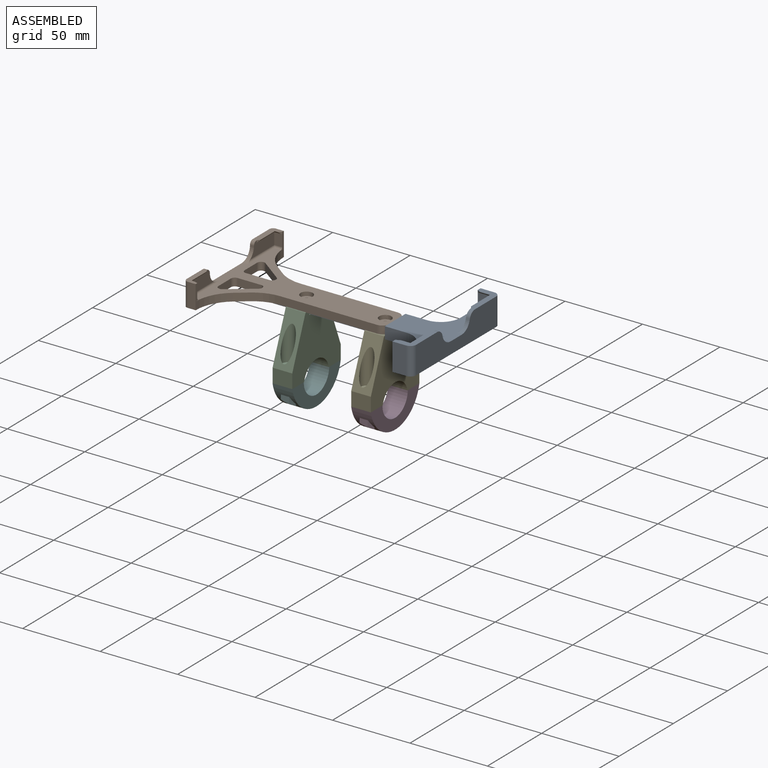
[diagram: assembled view]
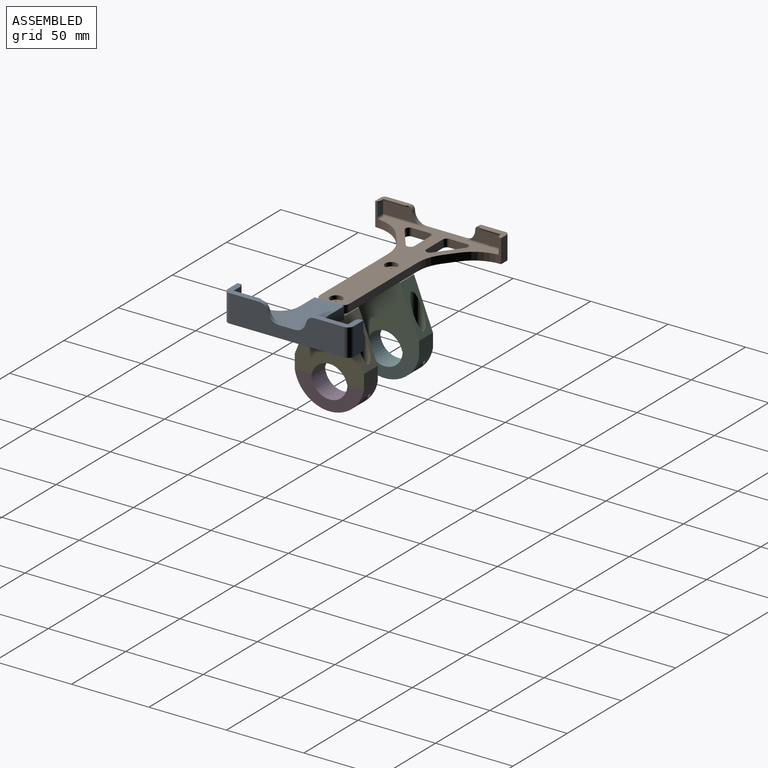
[diagram: assembled view, second angle]
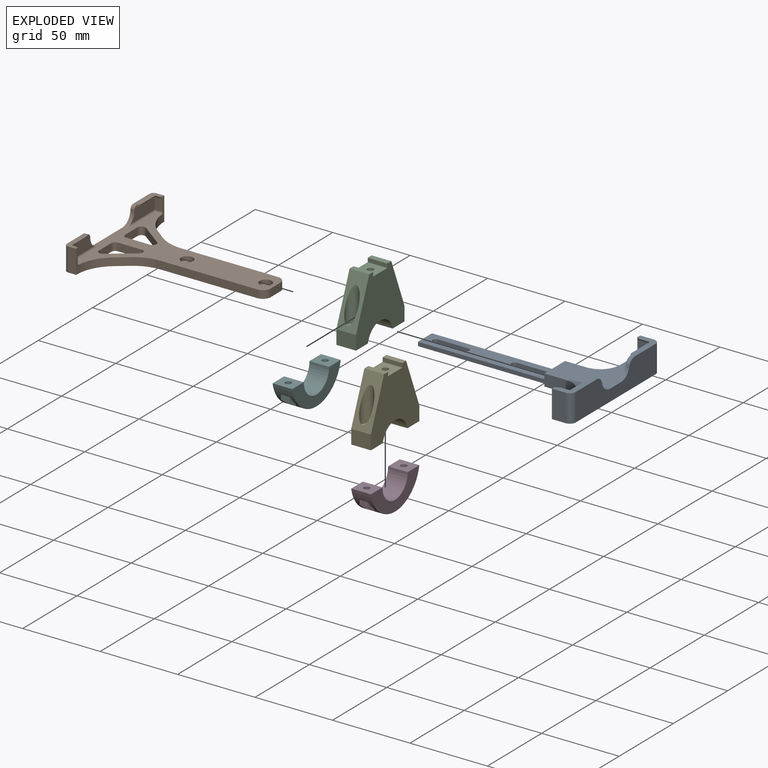
[diagram: exploded view]
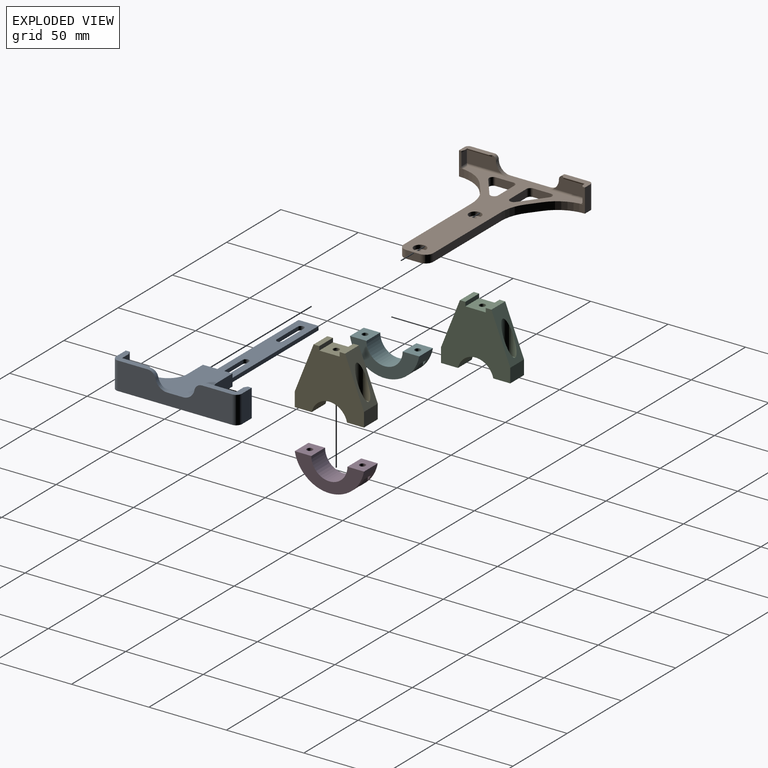
[diagram: exploded view, second angle]
ASSEMBLY  parts=6 mates=5
PART A: 69 faces, bbox 123.2x81.3x17.8 mm
  f0: plane 2.54x0.43mm, normal (0,-1,0), area 1.1mm2, adj f5,f61,f62,f65
  f1: plane 83.83x12.95mm, normal (0,0,1), area 902mm2, adj f4,f11,f12,f13,f14,f15,f16,f18
  f2: plane 13.97x7.62mm, normal (0,1,0), area 106.5mm2, adj f5,f10,f26,f54
  f3: plane 13.97x7.62mm, normal (0,-1,0), area 106.5mm2, adj f5,f10,f27,f54
  f4: cylinder r=3.81mm len=2.54mm, axis (0,0,-1), area 1.9mm2, adj f1,f5,f18,f56
  f5: plane 123.2x81.28mm, normal (0,0,-1), area 2526mm2, adj f0,f2,f3,f4,f11,f12,f13,f14
  f6: plane 10.16x7.62mm, normal (0,-1,0), area 77.4mm2, adj f7,f17,f37,f51
  f7: plane 28.81x8.89mm, normal (-1,0,0), area 201.5mm2, adj f6,f31,f33,f36,f50,f51
  f8: plane 28.81x8.89mm, normal (-1,0,0), area 201.5mm2, adj f9,f30,f32,f34,f41,f44
  f9: plane 10.16x7.62mm, normal (0,1,0), area 77.4mm2, adj f8,f20,f35,f44
  f10: plane 73.66x39.37mm, normal (0,0,1), area 1270.8mm2, adj f2,f3,f17,f20,f22,f26,f27,f30
  f11: plane 19.43x2.54mm, normal (0,-1,0), area 49.4mm2, adj f1,f5,f12,f25
  f12: cylinder r=2.03mm len=4.06mm, axis (0,0,-1), area 16.2mm2, adj f1,f5,f11,f13
  f13: plane 19.43x2.54mm, normal (0,1,0), area 49.4mm2, adj f1,f5,f12,f25
  f14: cylinder r=2.03mm len=4.06mm, axis (0,0,-1), area 16.2mm2, adj f1,f5,f15,f23
  f15: plane 19.43x2.54mm, normal (0,-1,0), area 49.4mm2, adj f1,f5,f14,f16
  f16: cylinder r=2.03mm len=4.06mm, axis (0,0,-1), area 16.2mm2, adj f1,f5,f15,f23
  f17: plane 18.42x17.78mm, normal (-1,0,0), area 166.5mm2, adj f5,f6,f10,f24,f26,f28,f37,f47
  f18: plane 11.43x2.54mm, normal (-1,0,0), area 29mm2, adj f1,f4,f5,f19
  f19: cylinder r=3.81mm len=2.54mm, axis (0,0,-1), area 1.9mm2, adj f1,f5,f18,f55
  f20: plane 18.42x17.78mm, normal (-1,0,0), area 144mm2, adj f5,f9,f10,f21,f27,f29,f35,f40
  f21: plane 17.78x8.89mm, normal (0,-1,0), area 158.1mm2, adj f5,f20,f29,f39
  f22: plane 73.66x17.78mm, normal (1,0,0), area 1067.5mm2, adj f5,f10,f28,f29,f30,f31,f32,f33
  f23: plane 19.43x2.54mm, normal (0,1,0), area 49.4mm2, adj f1,f5,f14,f16
  f24: plane 17.78x8.89mm, normal (0,1,0), area 158.1mm2, adj f5,f17,f28,f38
  f25: cylinder r=2.03mm len=4.06mm, axis (0,0,-1), area 16.2mm2, adj f1,f5,f11,f13
  f26: cylinder r=12.7mm len=12.7mm, axis (0,0,-1), area 152mm2, adj f2,f5,f10,f17
  f27: cylinder r=12.7mm len=12.7mm, axis (0,0,-1), area 152mm2, adj f3,f5,f10,f20
  f28: plane 23.12x12.7mm, normal (0,0,1), area 116.6mm2, adj f17,f22,f24,f33,f38,f47,f48,f49
  f29: plane 23.12x12.7mm, normal (0,0,1), area 115.6mm2, adj f20,f21,f22,f32,f39,f40,f41,f42
  f30: cylinder r=7.62mm len=7.47mm, axis (-1,0,0), area 28.7mm2, adj f8,f10,f22,f32,f34
  f31: cylinder r=7.62mm len=7.47mm, axis (1,0,0), area 28.7mm2, adj f7,f10,f22,f33,f36
  f32: cylinder r=5.08mm len=4.98mm, axis (-1,0,0), area 17.7mm2, adj f8,f22,f29,f30
  f33: cylinder r=5.08mm len=4.98mm, axis (1,0,0), area 17.7mm2, adj f7,f22,f28,f31
  f34: cylinder r=1.27mm len=33.02mm, axis (0,-1,0), area 60.4mm2, adj f8,f10,f30,f35
  f35: cylinder r=1.27mm len=10.16mm, axis (-1,0,0), area 19.3mm2, adj f9,f10,f20,f34
  f36: cylinder r=1.27mm len=33.02mm, axis (0,-1,0), area 60.4mm2, adj f7,f10,f31,f37
  f37: cylinder r=1.27mm len=10.16mm, axis (1,0,0), area 19.3mm2, adj f6,f10,f17,f36
  f38: cylinder r=3.81mm len=17.78mm, axis (0,0,1), area 106.4mm2, adj f5,f22,f24,f28
  f39: cylinder r=3.81mm len=17.78mm, axis (0,0,-1), area 106.4mm2, adj f5,f21,f22,f29
  f40: plane 3x1.27mm, normal (-0.39,0.92,0), area 2.8mm2, adj f20,f29,f43,f44,f46
  f41: plane 2.05x1.27mm, normal (-0.85,0.53,0), area 2.1mm2, adj f8,f29,f42,f44,f45
  f42: plane 17.25x0.25mm, normal (-1,0,0), area 4.4mm2, adj f29,f41,f43,f45
  f43: plane 5.89x0.25mm, normal (0,1,0), area 1.5mm2, adj f29,f40,f42,f46
  f44: plane 20.58x10.16mm, normal (0,0,-1), area 7.6mm2, adj f8,f9,f40,f41,f45,f46
  f45: plane 19.91x1.02mm, normal (-0.71,0,-0.71), area 26.7mm2, adj f41,f42,f44,f46
  f46: plane 9.31x1.02mm, normal (0,0.71,-0.71), area 10.9mm2, adj f40,f43,f44,f45
  f47: plane 1.91x1.27mm, normal (-0.55,-0.83,0), area 2mm2, adj f17,f28,f48,f51,f53
  f48: plane 6.98x0.25mm, normal (0,-1,0), area 1.8mm2, adj f28,f47,f49,f53
  f49: plane 17.66x0.25mm, normal (-1,0,0), area 4.5mm2, adj f28,f48,f50,f52
  f50: plane 1.65x1.27mm, normal (-0.79,-0.61,0), area 1.8mm2, adj f7,f28,f49,f51,f52
  f51: plane 20.58x10.16mm, normal (0,0,-1), area 7.7mm2, adj f6,f7,f47,f50,f52,f53
  f52: plane 19.99x1.02mm, normal (-0.71,0,-0.71), area 27mm2, adj f49,f50,f51,f53
  f53: plane 9.52x1.02mm, normal (0,-0.71,-0.71), area 11.9mm2, adj f47,f48,f51,f52
  f54: plane 19.05x7.62mm, normal (-1,0,0), area 112.3mm2, adj f1,f2,f3,f5,f10,f55,f56
  f55: plane 83.75x2.54mm, normal (0,-1,0), area 212.7mm2, adj f1,f5,f19,f54
  f56: plane 83.75x2.54mm, normal (0,1,0), area 212.7mm2, adj f1,f4,f5,f54
  f57: plane 3.04x2.54mm, normal (-0.6,0.8,0), area 9.6mm2, adj f5,f61,f64,f66
  f58: plane 2.54x2.02mm, normal (-1,0,0), area 5.1mm2, adj f5,f61,f64,f67
  f59: plane 2.54x0.64mm, normal (0,-1,0), area 1.6mm2, adj f5,f61,f67,f68
  f60: plane 2.54x0.38mm, normal (1,0,0), area 1mm2, adj f5,f61,f63,f68
  f61: plane 8.87x5.07mm, normal (0,0,1), area 20.8mm2, adj f0,f20,f57,f58,f59,f60,f62,f63
  f62: cylinder r=1.02mm len=2.54mm, axis (0,0,-1), area 3.7mm2, adj f0,f5,f61,f63
  f63: cylinder r=1.02mm len=2.54mm, axis (0,0,-1), area 2.6mm2, adj f5,f60,f61,f62
  f64: cylinder r=2.54mm len=2.54mm, axis (0,0,-1), area 6mm2, adj f5,f57,f58,f61
  f65: cylinder r=2.54mm len=2.54mm, axis (0,0,-1), area 10.1mm2, adj f0,f5,f20,f61
  f66: cylinder r=2.54mm len=2.54mm, axis (0,0,1), area 6mm2, adj f5,f20,f57,f61
  f67: cylinder r=0.51mm len=2.54mm, axis (0,0,1), area 2mm2, adj f5,f58,f59,f61
  f68: cylinder r=0.51mm len=2.54mm, axis (0,0,1), area 2mm2, adj f5,f59,f60,f61
PART B: 68 faces, bbox 108x81.3x15.2 mm
  f0: plane 7.62x5.08mm, normal (0,-1,0), area 38.7mm2, adj f7,f41,f49,f63
  f1: plane 7.87x5.08mm, normal (0,1,0), area 40mm2, adj f11,f43,f51,f58
  f2: plane 107.95x81.02mm, normal (0,0,1), area 2246.5mm2, adj f5,f6,f7,f9,f11,f12,f13,f14
  f3: plane 107.95x81.28mm, normal (0,0,-1), area 2552.5mm2, adj f4,f5,f6,f7,f8,f9,f10,f11
  f4: cylinder r=1.91mm len=3.81mm, axis (0,0,1), area 30.4mm2, adj f3,f19
  f5: plane 62.54x5.08mm, normal (0,1,0), area 317.7mm2, adj f2,f3,f29,f67
  f6: plane 7.32x5.58mm, normal (0.61,0.79,0), area 46.7mm2, adj f2,f3,f29,f30
  f7: plane 15.24x2.79mm, normal (1,0,0), area 16.5mm2, adj f0,f2,f3,f8,f30,f42,f49,f62
  f8: plane 15.24x5.08mm, normal (0,1,0), area 77.4mm2, adj f3,f7,f33,f42
  f9: plane 76.2x15.24mm, normal (-1,0,0), area 770.5mm2, adj f2,f3,f33,f34,f42,f44,f45,f46
  f10: plane 15.24x5.08mm, normal (0,-1,0), area 77.4mm2, adj f3,f11,f34,f44
  f11: plane 15.24x2.79mm, normal (1,0,0), area 16.5mm2, adj f1,f2,f3,f10,f31,f44,f51,f53
  f12: plane 7.32x5.58mm, normal (0.61,-0.79,0), area 46.7mm2, adj f2,f3,f31,f32
  f13: plane 62.54x5.08mm, normal (0,-1,0), area 317.7mm2, adj f2,f3,f32,f66
  f14: plane 8.89x5.08mm, normal (1,0,0), area 45.2mm2, adj f2,f3,f66,f67
  f15: extruded ~3.81x2.54mm, area 15.2mm2, adj f3,f16,f25
  f16: cylinder r=1.91mm len=3.81mm, axis (0,0,1), area 15.2mm2, adj f3,f15,f25
  f17: cylinder r=3.94mm len=7.87mm, axis (0,0,1), area 31.4mm2, adj f2,f18,f19
  f18: extruded ~7.87x3.94mm, area 31.4mm2, adj f2,f17,f19
  f19: plane 9.06x7.87mm, normal (0,0,1), area 37.3mm2, adj f4,f17,f18
  f20: plane 15.24x5.08mm, normal (0,1,0), area 77.4mm2, adj f2,f3,f38,f40
  f21: plane 15.24x11.43mm, normal (-0.6,-0.8,0), area 96.8mm2, adj f2,f3,f39,f40
  f22: plane 11.43x5.08mm, normal (1,0,0), area 58.1mm2, adj f2,f3,f38,f39
  f23: cylinder r=3.94mm len=7.87mm, axis (0,0,1), area 31.4mm2, adj f2,f24,f25
  f24: extruded ~7.87x3.94mm, area 31.4mm2, adj f2,f23,f25
  f25: plane 9.06x7.87mm, normal (0,0,1), area 37.3mm2, adj f15,f16,f23,f24
  f26: plane 15.24x11.43mm, normal (-0.6,0.8,0), area 96.8mm2, adj f2,f3,f35,f37
  f27: plane 15.24x5.08mm, normal (0,-1,0), area 77.4mm2, adj f2,f3,f35,f36
  f28: plane 11.43x5.08mm, normal (1,0,0), area 58.1mm2, adj f2,f3,f36,f37
  f29: cylinder r=25.4mm len=15.41mm, axis (0,0,-1), area 84.1mm2, adj f2,f3,f5,f6
  f30: cylinder r=25.4mm len=20.19mm, axis (0,0,-1), area 118.6mm2, adj f2,f3,f6,f7
  f31: cylinder r=25.4mm len=20.19mm, axis (0,0,-1), area 118.6mm2, adj f2,f3,f11,f12
  f32: cylinder r=25.4mm len=15.41mm, axis (0,0,-1), area 84.1mm2, adj f2,f3,f12,f13
  f33: cylinder r=2.54mm len=15.24mm, axis (0,0,-1), area 60.8mm2, adj f3,f8,f9,f42
  f34: cylinder r=2.54mm len=15.24mm, axis (0,0,1), area 60.8mm2, adj f3,f9,f10,f44
  f35: cylinder r=2.54mm len=5.08mm, axis (0,0,-1), area 32.2mm2, adj f2,f3,f26,f27
  f36: cylinder r=2.54mm len=5.08mm, axis (0,0,-1), area 20.3mm2, adj f2,f3,f27,f28
  f37: cylinder r=2.54mm len=5.08mm, axis (0,0,-1), area 28.6mm2, adj f2,f3,f26,f28
  f38: cylinder r=2.54mm len=5.08mm, axis (0,0,-1), area 20.3mm2, adj f2,f3,f20,f22
  f39: cylinder r=2.54mm len=5.08mm, axis (0,0,-1), area 28.6mm2, adj f2,f3,f21,f22
  f40: cylinder r=2.54mm len=5.08mm, axis (0,0,-1), area 32.2mm2, adj f2,f3,f20,f21
  f41: plane 22.2x8.89mm, normal (1,0,0), area 151.5mm2, adj f0,f46,f48,f50,f59,f63
  f42: plane 17.78x7.62mm, normal (0,0,1), area 74.9mm2, adj f7,f8,f9,f33,f48,f59,f60,f61
  f43: plane 22.2x8.89mm, normal (1,0,0), area 155.6mm2, adj f1,f45,f47,f52,f56,f57
  f44: plane 17.78x7.62mm, normal (0,0,1), area 65.9mm2, adj f9,f10,f11,f34,f47,f53,f54,f55
  f45: cylinder r=7.62mm len=7.62mm, axis (-1,0,0), area 32.6mm2, adj f2,f9,f43,f47,f52
  f46: cylinder r=7.62mm len=7.62mm, axis (1,0,0), area 32.6mm2, adj f2,f9,f41,f48,f50
  f47: cylinder r=2.54mm len=2.54mm, axis (1,0,0), area 10.1mm2, adj f9,f43,f44,f45
  f48: cylinder r=2.54mm len=2.54mm, axis (-1,0,0), area 10.1mm2, adj f9,f41,f42,f46
  f49: cylinder r=1.27mm len=5.08mm, axis (1,0,0), area 9.2mm2, adj f0,f2,f7,f50
  f50: cylinder r=1.27mm len=26.42mm, axis (0,1,0), area 47.3mm2, adj f2,f41,f46,f49
  f51: cylinder r=1.27mm len=5.08mm, axis (-1,0,0), area 9.2mm2, adj f1,f2,f11,f52
  f52: cylinder r=1.27mm len=26.42mm, axis (0,1,0), area 47.3mm2, adj f2,f43,f45,f51
  f53: plane 2.16x1.02mm, normal (0.33,0.94,0), area 1.5mm2, adj f11,f44,f54,f58
  f54: plane 2.16x0.25mm, normal (0,1,0), area 0.5mm2, adj f44,f53,f55,f58
  f55: plane 14.15x0.25mm, normal (1,0,0), area 3.6mm2, adj f44,f54,f56,f57
  f56: plane 1.35x1.02mm, normal (0.87,0.49,0), area 1mm2, adj f43,f44,f55,f57
  f57: plane 16.26x0.76mm, normal (0.71,0,-0.71), area 16.4mm2, adj f43,f55,f56,f58
  f58: plane 5.08x0.76mm, normal (0,0.71,-0.71), area 3.9mm2, adj f1,f53,f54,f57
  f59: plane 1.44x1.27mm, normal (0.75,-0.66,0), area 1.7mm2, adj f41,f42,f60,f63,f64
  f60: plane 13.54x0.25mm, normal (1,0,0), area 3.4mm2, adj f42,f59,f61,f64
  f61: plane 1.91x0.25mm, normal (0,-1,0), area 0.5mm2, adj f42,f60,f62,f65
  f62: plane 1.91x1.27mm, normal (0.55,-0.83,0), area 2mm2, adj f7,f42,f61,f63,f65
  f63: plane 16.26x5.08mm, normal (0,0,-1), area 5.3mm2, adj f0,f41,f59,f62,f64,f65
  f64: plane 15.71x1.02mm, normal (0.71,0,-0.71), area 21mm2, adj f59,f60,f63,f65
  f65: plane 4.45x1.02mm, normal (0,-0.71,-0.71), area 4.6mm2, adj f61,f62,f63,f64
  f66: cylinder r=5.08mm len=5.08mm, axis (0,0,1), area 40.5mm2, adj f2,f3,f13,f14
  f67: cylinder r=5.08mm len=5.08mm, axis (0,0,-1), area 40.5mm2, adj f2,f3,f5,f14
PART C: 30 faces, bbox 44.2x49x17 mm
  f0: cylinder r=11.68mm len=22.8mm, axis (0,0,-1), area 349.6mm2, adj f3,f4,f17,f18,f19,f20,f21,f22
  f1: plane 12.7x9.13mm, normal (0,-1,0), area 116mm2, adj f3,f4,f7,f28
  f2: plane 12.7x9.13mm, normal (0,1,0), area 116mm2, adj f3,f4,f15,f29
  f3: plane 44.7x39.87mm, normal (0,0,1), area 1216.8mm2, adj f0,f1,f2,f7,f8,f9,f10,f11
  f4: plane 44.7x39.87mm, normal (0,0,-1), area 1216.8mm2, adj f0,f1,f2,f7,f8,f9,f10,f11
  f5: cylinder r=1.97mm len=10.15mm, axis (-1,0,0), area 125.5mm2, adj f25,f29
  f6: cylinder r=1.97mm len=10.15mm, axis (-1,0,0), area 125.5mm2, adj f27,f28
  f7: plane 34.96x17.01mm, normal (0.37,-0.93,0), area 278mm2, adj f1,f3,f4,f8,f26
  f8: plane 12.7x0.03mm, normal (1,0,0), area 0.4mm2, adj f3,f4,f7,f9
  f9: plane 12.7x3.07mm, normal (1,0,0), area 38.9mm2, adj f3,f4,f8,f10
  f10: plane 12.7x0.55mm, normal (1,0.02,0), area 6.9mm2, adj f3,f4,f9,f11
  f11: plane 12.7x2.58mm, normal (0,1,0), area 32.8mm2, adj f3,f4,f10,f12
  f12: plane 13.15x12.7mm, normal (1,0,0), area 154.9mm2, adj f3,f4,f11,f13,f16
  f13: plane 12.7x2.67mm, normal (0,-1,0), area 33.9mm2, adj f3,f4,f12,f14
  f14: plane 12.7x3.56mm, normal (1,0,0), area 45.2mm2, adj f3,f4,f13,f15
  f15: plane 35.04x17.01mm, normal (0.37,0.93,0), area 279.2mm2, adj f2,f3,f4,f14,f24
  f16: cylinder r=1.97mm len=17.78mm, axis (1,0,0), area 219.9mm2, adj f12,f23
  f17: plane 10.97x3.84mm, normal (0,-0.5,0.87), area 46.2mm2, adj f0,f18,f22,f23
  f18: plane 10.94x4.4mm, normal (0,-1,0), area 48.1mm2, adj f0,f17,f19,f23
  f19: plane 10.97x3.84mm, normal (0,-0.5,-0.87), area 46.2mm2, adj f0,f18,f20,f23
  f20: plane 10.95x3.84mm, normal (0,0.5,-0.87), area 46.2mm2, adj f0,f19,f21,f23
  f21: plane 10.92x4.4mm, normal (0,1,0), area 48mm2, adj f0,f20,f22,f23
  f22: plane 10.95x3.84mm, normal (0,0.5,0.87), area 46.2mm2, adj f0,f17,f21,f23
  f23: plane 8.8x7.62mm, normal (-1,0,0), area 38.1mm2, adj f16,f17,f18,f19,f20,f21,f22
  f24: cylinder r=4.06mm len=22.73mm, axis (-1,0,0), area 326.3mm2, adj f15,f25
  f25: plane 8.13x8.13mm, normal (1,0,0), area 39.7mm2, adj f5,f24
  f26: cylinder r=4.06mm len=22.73mm, axis (-1,0,0), area 326.3mm2, adj f7,f27
  f27: plane 8.13x8.13mm, normal (1,0,0), area 39.7mm2, adj f6,f26
  f28: plane 12.7x10.95mm, normal (-1,0,0), area 126.9mm2, adj f0,f1,f3,f4,f6
  f29: plane 12.7x10.95mm, normal (-1,0,0), area 126.9mm2, adj f0,f2,f3,f4,f5
PART D: 20 faces, bbox 18.6x44.7x12.7 mm
  f0: cylinder r=11.68mm len=23.37mm, axis (0,0,-1), area 466.2mm2, adj f1,f3,f4,f5
  f1: plane 12.7x10.67mm, normal (1,0,0), area 124.1mm2, adj f0,f2,f4,f5,f13
  f2: cylinder r=22.73mm len=44.7mm, axis (0,0,-1), area 636.4mm2, adj f1,f3,f4,f5,f7,f8,f9,f10
  f3: plane 12.7x10.67mm, normal (1,0,0), area 124.1mm2, adj f0,f2,f4,f5,f6
  f4: plane 44.7x18.59mm, normal (0,0,1), area 409.8mm2, adj f0,f1,f2,f3
  f5: plane 44.7x18.59mm, normal (0,0,-1), area 409.8mm2, adj f0,f1,f2,f3
  f6: cylinder r=1.91mm len=6.35mm, axis (1,0,0), area 76mm2, adj f3,f12
  f7: plane 8.23x4.13mm, normal (0,-0.5,0.87), area 31.2mm2, adj f2,f8,f11,f12
  f8: plane 8.23x4.77mm, normal (0,-1,0), area 39.2mm2, adj f2,f7,f9,f12
  f9: plane 8.23x4.13mm, normal (0,-0.5,-0.87), area 31.2mm2, adj f2,f8,f10,f12
  f10: plane 4.58x3.15mm, normal (0,0.5,-0.87), area 9mm2, adj f2,f9,f12
  f11: plane 4.58x3.15mm, normal (0,0.5,0.87), area 9mm2, adj f2,f7,f12
  f12: plane 9.53x7.27mm, normal (-1,0,0), area 42.4mm2, adj f2,f6,f7,f8,f9,f10,f11
  f13: cylinder r=1.91mm len=6.35mm, axis (1,0,0), area 76mm2, adj f1,f19
  f14: plane 4.58x3.15mm, normal (0,-0.5,0.87), area 9mm2, adj f2,f18,f19
  f15: plane 4.58x3.15mm, normal (0,-0.5,-0.87), area 9mm2, adj f2,f16,f19
  f16: plane 8.23x4.13mm, normal (0,0.5,-0.87), area 31.2mm2, adj f2,f15,f17,f19
  f17: plane 8.23x4.77mm, normal (0,1,0), area 39.2mm2, adj f2,f16,f18,f19
  f18: plane 8.23x4.13mm, normal (0,0.5,0.87), area 31.2mm2, adj f2,f14,f17,f19
  f19: plane 9.53x7.27mm, normal (-1,0,0), area 42.4mm2, adj f2,f13,f14,f15,f16,f17,f18
PART E: same geometry as C
PART F: same geometry as D
PLACE A t=(-11.51,79.65,20.37)mm
PLACE B t=(70.05,160.39,22.39)mm
PLACE C rot(axis=(0.71,0,0.71),180deg) t=(17.28,93.44,-86.18)mm
PLACE D rot(axis=(0,-1,0),90deg) t=(80.78,97.78,32.32)mm
PLACE E rot(axis=(0,-1,0),90deg) t=(80.78,162.59,-86.18)mm
PLACE F rot(axis=(0.71,0,0.71),180deg) t=(17.28,158.25,32.32)mm
MATE fastened E.f16 <-> B.f16  axis (0,0,1) through (74.43,128.02,19.79)mm
MATE fastened C.f16 <-> B.f4  axis (0,0,1) through (23.63,128.01,19.79)mm
MATE fastened D.f6 <-> E.f6  axis (0,0,1) through (74.43,110.97,-17.4)mm
MATE fastened C.f5 <-> F.f13  axis (0,0,-1) through (23.63,111.02,-17.4)mm
MATE slider A.f54 <-> B.f14  axis (-1,0,0) through (80.78,128.01,24.93)mm
